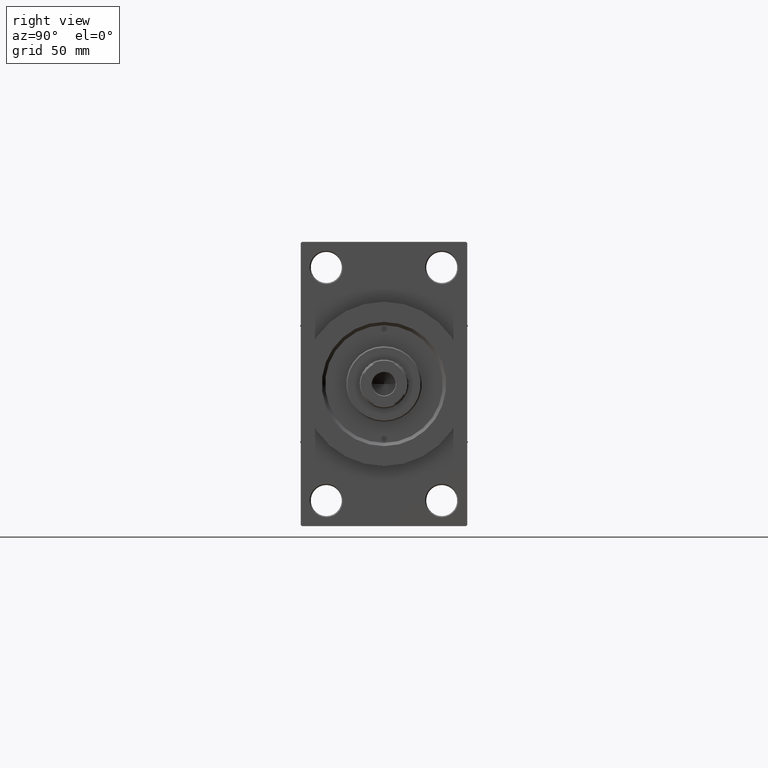
[diagram: clean part render]
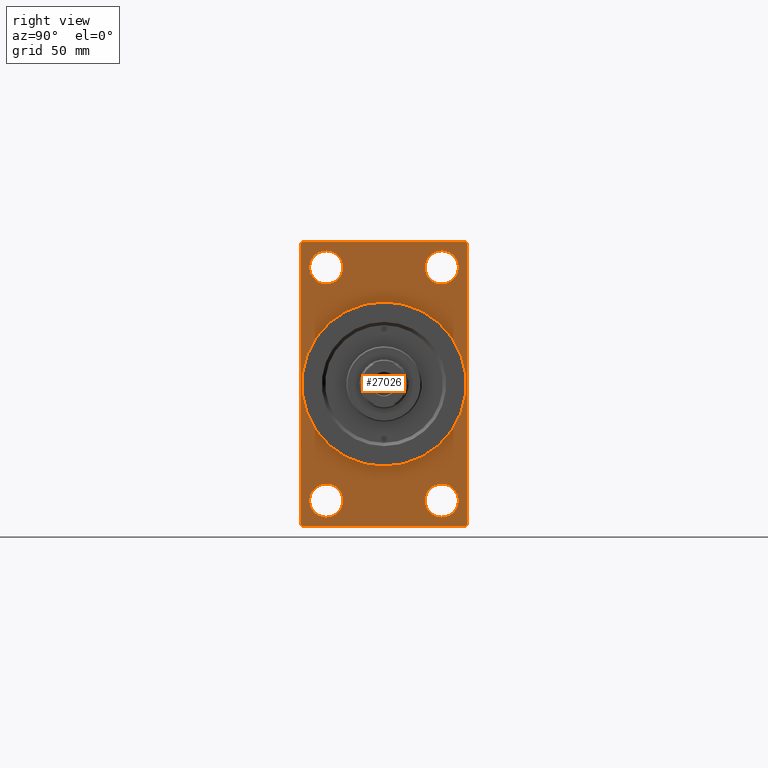
[diagram: same view with one face highlighted and labeled with its STEP entity id]
A machine part, right view. The second image highlights one B-rep face of the part: STEP entity #27026.
In plain terms, the highlighted planar face has unit normal (-1, 0, 0).
Its self-contained STEP definition (entity closure, byte-faithful):
#719 = DIRECTION ( 'NONE',  ( 0.000000000000000000, 0.000000000000000000, -1.000000000000000000 ) ) ;
#1180 = VERTEX_POINT ( 'NONE', #28529 ) ;
#1223 = ORIENTED_EDGE ( 'NONE', *, *, #36729, .T. ) ;
#1433 = DIRECTION ( 'NONE',  ( 0.000000000000000000, 0.000000000000000000, 1.000000000000000000 ) ) ;
#1585 = CIRCLE ( 'NONE', #7715, 7.500000000000034639 ) ;
#1724 = VERTEX_POINT ( 'NONE', #9467 ) ;
#1756 = VERTEX_POINT ( 'NONE', #43989 ) ;
#1932 = VERTEX_POINT ( 'NONE', #7521 ) ;
#1975 = ORIENTED_EDGE ( 'NONE', *, *, #16669, .T. ) ;
#2109 = VERTEX_POINT ( 'NONE', #15601 ) ;
#2518 = CARTESIAN_POINT ( 'NONE',  ( 237.0000000000000000, 26.00000000000000000, -60.00000000000002842 ) ) ;
#2890 = CARTESIAN_POINT ( 'NONE',  ( 237.0000000000000000, -25.99999999999999645, 52.50000000000000000 ) ) ;
#3230 = VERTEX_POINT ( 'NONE', #26105 ) ;
#3506 = VERTEX_POINT ( 'NONE', #11176 ) ;
#3674 = CIRCLE ( 'NONE', #28969, 7.500000000000034639 ) ;
#4255 = ORIENTED_EDGE ( 'NONE', *, *, #8818, .F. ) ;
#4806 = CARTESIAN_POINT ( 'NONE',  ( 237.0000000000000000, 37.50000000000000000, 63.49999999999995737 ) ) ;
#5515 = CARTESIAN_POINT ( 'NONE',  ( 237.0000000000000000, -25.99999999999999645, 44.99999999999996447 ) ) ;
#5575 = DIRECTION ( 'NONE',  ( 0.000000000000000000, -1.000000000000000000, -1.850371707708594563E-16 ) ) ;
#5910 = VECTOR ( 'NONE', #27667, 1000.000000000000000 ) ;
#6410 = CIRCLE ( 'NONE', #14081, 7.500000000000034639 ) ;
#6492 = EDGE_LOOP ( 'NONE', ( #44153, #7066 ) ) ;
#6541 = ORIENTED_EDGE ( 'NONE', *, *, #32607, .T. ) ;
#6640 = FACE_OUTER_BOUND ( 'NONE', #37020, .T. ) ;
#6891 = CARTESIAN_POINT ( 'NONE',  ( 237.0000000000000000, 37.49999999999999289, -63.50000000000001421 ) ) ;
#6909 = VECTOR ( 'NONE', #20145, 1000.000000000000000 ) ;
#7035 = EDGE_CURVE ( 'NONE', #37130, #1756, #26663, .T. ) ;
#7041 = CARTESIAN_POINT ( 'NONE',  ( 237.0000000000000000, -25.99999999999999645, 60.00000000000003553 ) ) ;
#7066 = ORIENTED_EDGE ( 'NONE', *, *, #33732, .T. ) ;
#7363 = VERTEX_POINT ( 'NONE', #7041 ) ;
#7507 = AXIS2_PLACEMENT_3D ( 'NONE', #17695, #10477, #33021 ) ;
#7521 = CARTESIAN_POINT ( 'NONE',  ( 237.0000000000000000, 26.00000000000000000, 60.00000000000002842 ) ) ;
#7671 = AXIS2_PLACEMENT_3D ( 'NONE', #17100, #27409, #23593 ) ;
#7715 = AXIS2_PLACEMENT_3D ( 'NONE', #37621, #15100, #19420 ) ;
#7941 = CIRCLE ( 'NONE', #9466, 7.500000000000034639 ) ;
#8294 = VECTOR ( 'NONE', #31611, 999.9999999999998863 ) ;
#8563 = EDGE_CURVE ( 'NONE', #35944, #32988, #13023, .T. ) ;
#8627 = DIRECTION ( 'NONE',  ( 0.000000000000000000, 0.000000000000000000, 1.000000000000000000 ) ) ;
#8818 = EDGE_CURVE ( 'NONE', #1756, #37130, #11426, .T. ) ;
#9172 = CARTESIAN_POINT ( 'NONE',  ( 237.0000000000000000, 37.50000000000000000, 63.99999999999998579 ) ) ;
#9327 = DIRECTION ( 'NONE',  ( -1.000000000000000000, 0.000000000000000000, -0.000000000000000000 ) ) ;
#9332 = CARTESIAN_POINT ( 'NONE',  ( 237.0000000000000000, -36.99999999999999289, -64.00000000000001421 ) ) ;
#9466 = AXIS2_PLACEMENT_3D ( 'NONE', #13175, #38577, #8627 ) ;
#9467 = CARTESIAN_POINT ( 'NONE',  ( 237.0000000000000000, 26.00000000000000000, -44.99999999999995737 ) ) ;
#9546 = FACE_BOUND ( 'NONE', #6492, .T. ) ;
#9931 = EDGE_LOOP ( 'NONE', ( #18706, #35389 ) ) ;
#10477 = DIRECTION ( 'NONE',  ( 1.000000000000000000, 0.000000000000000000, 0.000000000000000000 ) ) ;
#10552 = AXIS2_PLACEMENT_3D ( 'NONE', #30920, #9327, #1433 ) ;
#10662 = VERTEX_POINT ( 'NONE', #2518 ) ;
#10796 = AXIS2_PLACEMENT_3D ( 'NONE', #23082, #15870, #26901 ) ;
#11111 = EDGE_CURVE ( 'NONE', #18623, #3506, #33100, .T. ) ;
#11176 = CARTESIAN_POINT ( 'NONE',  ( 237.0000000000000000, -37.49999999999999289, -63.49999999999997158 ) ) ;
#11247 = CARTESIAN_POINT ( 'NONE',  ( 237.0000000000000000, -37.49999999999999289, 63.49999999999991473 ) ) ;
#11329 = EDGE_CURVE ( 'NONE', #12173, #3230, #35917, .T. ) ;
#11426 = CIRCLE ( 'NONE', #46640, 37.00000000000000000 ) ;
#11524 = CARTESIAN_POINT ( 'NONE',  ( 237.0000000000000000, 37.00000000000000000, 63.99999999999998579 ) ) ;
#11620 = CARTESIAN_POINT ( 'NONE',  ( 237.0000000000000000, -25.99999999999999645, -44.99999999999995737 ) ) ;
#12173 = VERTEX_POINT ( 'NONE', #25254 ) ;
#12499 = CARTESIAN_POINT ( 'NONE',  ( 237.0000000000000000, 0.000000000000000000, 0.000000000000000000 ) ) ;
#12681 = CARTESIAN_POINT ( 'NONE',  ( 237.0000000000000000, -25.99999999999999645, 52.50000000000000000 ) ) ;
#12729 = CARTESIAN_POINT ( 'NONE',  ( 237.0000000000000000, -36.99999999999992895, 63.99999999999997158 ) ) ;
#13023 = LINE ( 'NONE', #9172, #35854 ) ;
#13175 = CARTESIAN_POINT ( 'NONE',  ( 237.0000000000000000, -25.99999999999999645, -52.49999999999999289 ) ) ;
#13628 = CARTESIAN_POINT ( 'NONE',  ( 237.0000000000000000, 0.000000000000000000, 0.000000000000000000 ) ) ;
#14081 = AXIS2_PLACEMENT_3D ( 'NONE', #36287, #23041, #41015 ) ;
#14403 = AXIS2_PLACEMENT_3D ( 'NONE', #13628, #31843, #17227 ) ;
#14455 = LINE ( 'NONE', #18053, #30698 ) ;
#14467 = ORIENTED_EDGE ( 'NONE', *, *, #27468, .T. ) ;
#14615 = VERTEX_POINT ( 'NONE', #22848 ) ;
#14822 = ORIENTED_EDGE ( 'NONE', *, *, #34191, .T. ) ;
#15100 = DIRECTION ( 'NONE',  ( -1.000000000000000000, 0.000000000000000000, -0.000000000000000000 ) ) ;
#15585 = CARTESIAN_POINT ( 'NONE',  ( 237.0000000000000000, -37.49999999999999289, 63.99999999999997158 ) ) ;
#15590 = ORIENTED_EDGE ( 'NONE', *, *, #27569, .T. ) ;
#15601 = CARTESIAN_POINT ( 'NONE',  ( 237.0000000000000000, 26.00000000000000000, 44.99999999999995737 ) ) ;
#15860 = DIRECTION ( 'NONE',  ( 0.000000000000000000, 0.000000000000000000, -1.000000000000000000 ) ) ;
#15870 = DIRECTION ( 'NONE',  ( -1.000000000000000000, 0.000000000000000000, -0.000000000000000000 ) ) ;
#15895 = CIRCLE ( 'NONE', #10552, 7.500000000000034639 ) ;
#15962 = CARTESIAN_POINT ( 'NONE',  ( 237.0000000000000000, 37.49999999999999289, -64.00000000000000000 ) ) ;
#16134 = CIRCLE ( 'NONE', #7671, 7.500000000000034639 ) ;
#16229 = EDGE_CURVE ( 'NONE', #38588, #35944, #14455, .T. ) ;
#16669 = EDGE_CURVE ( 'NONE', #1932, #2109, #1585, .T. ) ;
#17100 = CARTESIAN_POINT ( 'NONE',  ( 237.0000000000000000, 26.00000000000000000, 52.49999999999999289 ) ) ;
#17227 = DIRECTION ( 'NONE',  ( -0.000000000000000000, 0.000000000000000000, 1.000000000000000000 ) ) ;
#17695 = CARTESIAN_POINT ( 'NONE',  ( 237.0000000000000000, 0.000000000000000000, 0.000000000000000000 ) ) ;
#18053 = CARTESIAN_POINT ( 'NONE',  ( 237.0000000000000000, 37.00000000000000000, 63.99999999999998579 ) ) ;
#18623 = VERTEX_POINT ( 'NONE', #11247 ) ;
#18706 = ORIENTED_EDGE ( 'NONE', *, *, #44717, .T. ) ;
#19380 = VERTEX_POINT ( 'NONE', #5515 ) ;
#19420 = DIRECTION ( 'NONE',  ( 0.000000000000000000, 0.000000000000000000, 1.000000000000000000 ) ) ;
#20145 = DIRECTION ( 'NONE',  ( 0.000000000000000000, 0.7071067811865181518, -0.7071067811865769936 ) ) ;
#21064 = PLANE ( 'NONE',  #14403 ) ;
#21375 = DIRECTION ( 'NONE',  ( 0.000000000000000000, 0.000000000000000000, 1.000000000000000000 ) ) ;
#22848 = CARTESIAN_POINT ( 'NONE',  ( 237.0000000000000000, -25.99999999999999645, -60.00000000000002842 ) ) ;
#23041 = DIRECTION ( 'NONE',  ( -1.000000000000000000, 0.000000000000000000, -0.000000000000000000 ) ) ;
#23082 = CARTESIAN_POINT ( 'NONE',  ( 237.0000000000000000, -25.99999999999999645, -52.49999999999999289 ) ) ;
#23143 = CARTESIAN_POINT ( 'NONE',  ( 237.0000000000000000, 37.50000000000000000, 63.99999999999998579 ) ) ;
#23593 = DIRECTION ( 'NONE',  ( 0.000000000000000000, 0.000000000000000000, 1.000000000000000000 ) ) ;
#24665 = FACE_BOUND ( 'NONE', #9931, .T. ) ;
#25254 = CARTESIAN_POINT ( 'NONE',  ( 237.0000000000000000, 36.99999999999996447, -64.00000000000000000 ) ) ;
#25894 = VECTOR ( 'NONE', #34095, 1000.000000000000000 ) ;
#25971 = EDGE_CURVE ( 'NONE', #38588, #3230, #44239, .T. ) ;
#26100 = CIRCLE ( 'NONE', #26886, 7.500000000000034639 ) ;
#26105 = CARTESIAN_POINT ( 'NONE',  ( 237.0000000000000000, 37.49999999999999289, -63.50000000000001421 ) ) ;
#26605 = EDGE_CURVE ( 'NONE', #1724, #10662, #15895, .T. ) ;
#26663 = CIRCLE ( 'NONE', #7507, 37.00000000000000000 ) ;
#26886 = AXIS2_PLACEMENT_3D ( 'NONE', #12681, #27304, #45532 ) ;
#26901 = DIRECTION ( 'NONE',  ( 0.000000000000000000, 0.000000000000000000, 1.000000000000000000 ) ) ;
#27026 = ADVANCED_FACE ( 'NONE', ( #42399, #9546, #24665, #28495, #29212, #6640 ), #21064, .F. ) ;
#27304 = DIRECTION ( 'NONE',  ( -1.000000000000000000, 0.000000000000000000, -0.000000000000000000 ) ) ;
#27409 = DIRECTION ( 'NONE',  ( -1.000000000000000000, 0.000000000000000000, -0.000000000000000000 ) ) ;
#27468 = EDGE_CURVE ( 'NONE', #32988, #18623, #30741, .T. ) ;
#27569 = EDGE_CURVE ( 'NONE', #19380, #7363, #3674, .T. ) ;
#27667 = DIRECTION ( 'NONE',  ( 0.000000000000000000, -5.421010862427522170E-17, -1.000000000000000000 ) ) ;
#28495 = FACE_BOUND ( 'NONE', #43815, .T. ) ;
#28529 = CARTESIAN_POINT ( 'NONE',  ( 237.0000000000000000, -36.99999999999999289, -64.00000000000001421 ) ) ;
#28819 = EDGE_LOOP ( 'NONE', ( #15590, #14822 ) ) ;
#28969 = AXIS2_PLACEMENT_3D ( 'NONE', #2890, #47022, #21375 ) ;
#29212 = FACE_BOUND ( 'NONE', #39575, .T. ) ;
#30698 = VECTOR ( 'NONE', #43218, 1000.000000000000000 ) ;
#30741 = LINE ( 'NONE', #41312, #25894 ) ;
#30920 = CARTESIAN_POINT ( 'NONE',  ( 237.0000000000000000, 26.00000000000000000, -52.49999999999999289 ) ) ;
#31611 = DIRECTION ( 'NONE',  ( -0.000000000000000000, 0.7071067811865771047, 0.7071067811865180408 ) ) ;
#31843 = DIRECTION ( 'NONE',  ( -1.000000000000000000, 0.000000000000000000, -0.000000000000000000 ) ) ;
#32287 = CARTESIAN_POINT ( 'NONE',  ( 237.0000000000000000, 0.000000000000000000, 37.00000000000000000 ) ) ;
#32534 = VERTEX_POINT ( 'NONE', #11620 ) ;
#32607 = EDGE_CURVE ( 'NONE', #2109, #1932, #16134, .T. ) ;
#32988 = VERTEX_POINT ( 'NONE', #12729 ) ;
#33015 = CIRCLE ( 'NONE', #10796, 7.500000000000034639 ) ;
#33021 = DIRECTION ( 'NONE',  ( 0.000000000000000000, 0.000000000000000000, -1.000000000000000000 ) ) ;
#33100 = LINE ( 'NONE', #15585, #47357 ) ;
#33732 = EDGE_CURVE ( 'NONE', #32534, #14615, #33015, .T. ) ;
#34095 = DIRECTION ( 'NONE',  ( -0.000000000000000000, -0.7071067811865524577, -0.7071067811865426878 ) ) ;
#34191 = EDGE_CURVE ( 'NONE', #7363, #19380, #26100, .T. ) ;
#35389 = ORIENTED_EDGE ( 'NONE', *, *, #26605, .T. ) ;
#35854 = VECTOR ( 'NONE', #5575, 1000.000000000000000 ) ;
#35917 = LINE ( 'NONE', #6891, #8294 ) ;
#35944 = VERTEX_POINT ( 'NONE', #11524 ) ;
#36287 = CARTESIAN_POINT ( 'NONE',  ( 237.0000000000000000, 26.00000000000000000, -52.49999999999999289 ) ) ;
#36729 = EDGE_CURVE ( 'NONE', #3506, #1180, #46735, .T. ) ;
#37020 = EDGE_LOOP ( 'NONE', ( #41788, #1223, #37330, #40958, #46195, #42914, #41833, #14467 ) ) ;
#37074 = LINE ( 'NONE', #15962, #45339 ) ;
#37130 = VERTEX_POINT ( 'NONE', #32287 ) ;
#37330 = ORIENTED_EDGE ( 'NONE', *, *, #39978, .F. ) ;
#37621 = CARTESIAN_POINT ( 'NONE',  ( 237.0000000000000000, 26.00000000000000000, 52.49999999999999289 ) ) ;
#38577 = DIRECTION ( 'NONE',  ( -1.000000000000000000, 0.000000000000000000, -0.000000000000000000 ) ) ;
#38588 = VERTEX_POINT ( 'NONE', #4806 ) ;
#39575 = EDGE_LOOP ( 'NONE', ( #47286, #4255 ) ) ;
#39978 = EDGE_CURVE ( 'NONE', #12173, #1180, #37074, .T. ) ;
#40958 = ORIENTED_EDGE ( 'NONE', *, *, #11329, .T. ) ;
#41015 = DIRECTION ( 'NONE',  ( 0.000000000000000000, 0.000000000000000000, 1.000000000000000000 ) ) ;
#41312 = CARTESIAN_POINT ( 'NONE',  ( 237.0000000000000000, -37.49999999999999289, 63.49999999999991473 ) ) ;
#41788 = ORIENTED_EDGE ( 'NONE', *, *, #11111, .T. ) ;
#41833 = ORIENTED_EDGE ( 'NONE', *, *, #8563, .T. ) ;
#42399 = FACE_BOUND ( 'NONE', #28819, .T. ) ;
#42442 = DIRECTION ( 'NONE',  ( 1.000000000000000000, 0.000000000000000000, 0.000000000000000000 ) ) ;
#42914 = ORIENTED_EDGE ( 'NONE', *, *, #16229, .T. ) ;
#43218 = DIRECTION ( 'NONE',  ( 0.000000000000000000, -0.7071067811865279218, 0.7071067811865672237 ) ) ;
#43815 = EDGE_LOOP ( 'NONE', ( #6541, #1975 ) ) ;
#43989 = CARTESIAN_POINT ( 'NONE',  ( 237.0000000000000000, 4.531193156845206793E-15, -37.00000000000000000 ) ) ;
#44153 = ORIENTED_EDGE ( 'NONE', *, *, #44806, .T. ) ;
#44239 = LINE ( 'NONE', #23143, #5910 ) ;
#44717 = EDGE_CURVE ( 'NONE', #10662, #1724, #6410, .T. ) ;
#44806 = EDGE_CURVE ( 'NONE', #14615, #32534, #7941, .T. ) ;
#45224 = DIRECTION ( 'NONE',  ( 0.000000000000000000, -1.000000000000000000, -1.850371707708594563E-16 ) ) ;
#45339 = VECTOR ( 'NONE', #45224, 1000.000000000000000 ) ;
#45532 = DIRECTION ( 'NONE',  ( 0.000000000000000000, 0.000000000000000000, 1.000000000000000000 ) ) ;
#46195 = ORIENTED_EDGE ( 'NONE', *, *, #25971, .F. ) ;
#46640 = AXIS2_PLACEMENT_3D ( 'NONE', #12499, #42442, #15860 ) ;
#46735 = LINE ( 'NONE', #9332, #6909 ) ;
#47022 = DIRECTION ( 'NONE',  ( -1.000000000000000000, 0.000000000000000000, -0.000000000000000000 ) ) ;
#47286 = ORIENTED_EDGE ( 'NONE', *, *, #7035, .F. ) ;
#47357 = VECTOR ( 'NONE', #719, 1000.000000000000000 ) ;